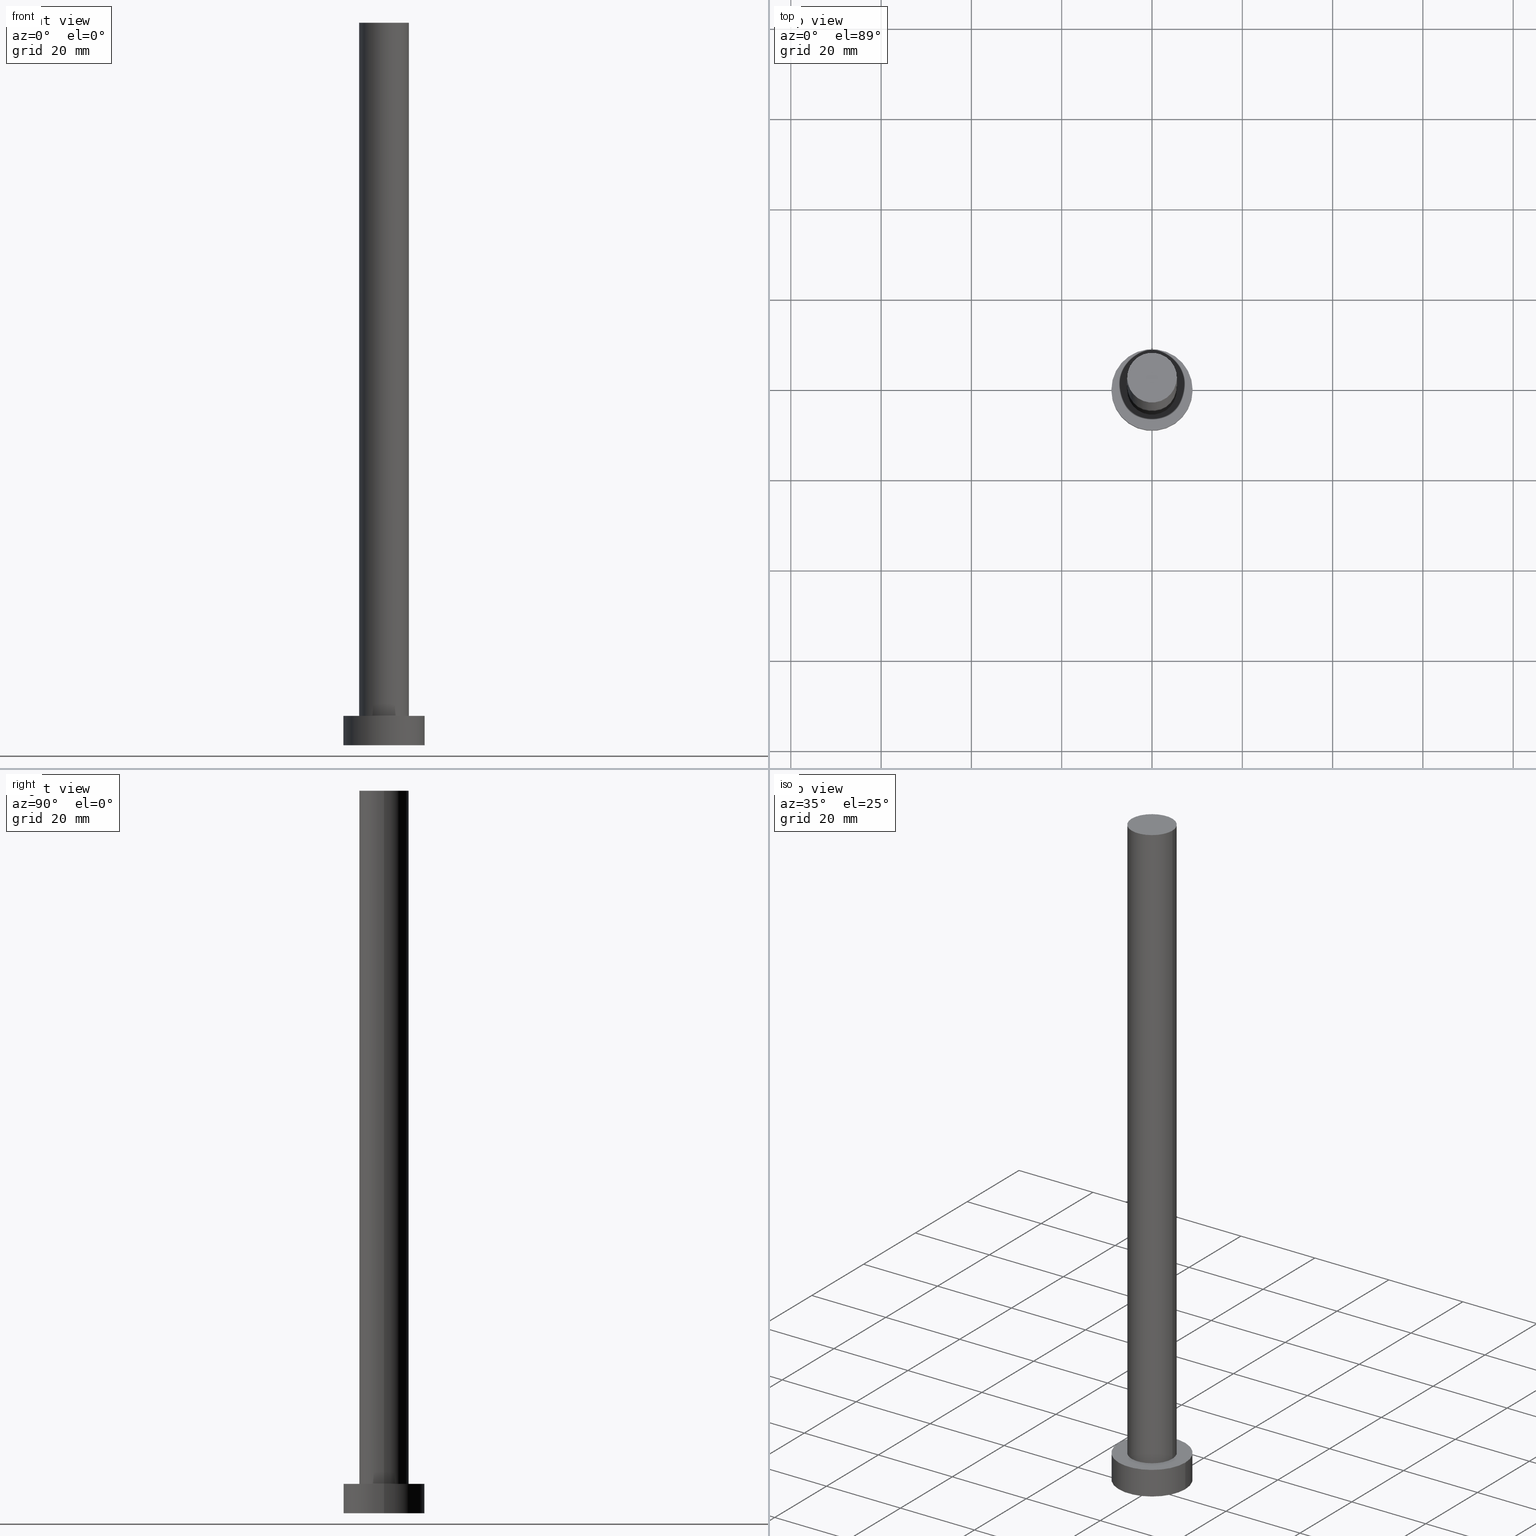
[diagram: canonical four-view strip — front | top / right | iso, engineering-drawing reading convention]
A machine part, canonical four-view strip (front | top / right | iso — engineering-drawing reading convention). The complete STEP part file that produces these views, byte-faithful:
ISO-10303-21;
HEADER;
FILE_DESCRIPTION (( 'STEP AP203' ),
    '1' );
FILE_NAME ('9eff.STEP',
    '2023-02-13T12:20:26',
    ( '' ),
    ( '' ),
    'SwSTEP 2.0',
    'SolidWorks 2019',
    '' );
FILE_SCHEMA (( 'CONFIG_CONTROL_DESIGN' ));
ENDSEC;

DATA;
#1 = COORDINATED_UNIVERSAL_TIME_OFFSET ( 1, 0, .AHEAD. ) ;
#2 = VERTEX_POINT ( 'NONE', #216 ) ;
#3 = DIRECTION ( 'NONE',  ( 0.000000000000000000, 0.000000000000000000, 1.000000000000000000 ) ) ;
#4 = ORIENTED_EDGE ( 'NONE', *, *, #190, .T. ) ;
#5 = AXIS2_PLACEMENT_3D ( 'NONE', #255, #65, #250 ) ;
#6 = AXIS2_PLACEMENT_3D ( 'NONE', #16, #3, #22 ) ;
#7 = VERTEX_POINT ( 'NONE', #47 ) ;
#8 = APPROVAL_ROLE ( '' ) ;
#9 = LINE ( 'NONE', #53, #57 ) ;
#10 = DIRECTION ( 'NONE',  ( -0.000000000000000000, -0.000000000000000000, -1.000000000000000000 ) ) ;
#11 = PRODUCT_DEFINITION ( 'NEZN�M�', '', #230, #174 ) ;
#12 = VERTEX_POINT ( 'NONE', #170 ) ;
#13 = AXIS2_PLACEMENT_3D ( 'NONE', #206, #228, #42 ) ;
#14 = EDGE_CURVE ( 'NONE', #2, #70, #133, .T. ) ;
#15 = DIRECTION ( 'NONE',  ( 0.000000000000000000, 0.000000000000000000, 1.000000000000000000 ) ) ;
#16 = CARTESIAN_POINT ( 'NONE',  ( 0.000000000000000000, 0.000000000000000000, 6.500000000000000000 ) ) ;
#17 = PRODUCT_DEFINITION_SHAPE ( 'NONE', 'NONE',  #11 ) ;
#18 = PLANE ( 'NONE',  #162 ) ;
#19 = FACE_OUTER_BOUND ( 'NONE', #235, .T. ) ;
#20 = CYLINDRICAL_SURFACE ( 'NONE', #157, 5.500000000000000000 ) ;
#21 = CC_DESIGN_SECURITY_CLASSIFICATION ( #177, ( #230 ) ) ;
#22 = DIRECTION ( 'NONE',  ( 1.000000000000000000, 0.000000000000000000, 0.000000000000000000 ) ) ;
#23 = FACE_OUTER_BOUND ( 'NONE', #147, .T. ) ;
#24 = EDGE_CURVE ( 'NONE', #7, #182, #132, .T. ) ;
#25 = UNCERTAINTY_MEASURE_WITH_UNIT (LENGTH_MEASURE( 1.000000000000000082E-05 ), #45, 'distance_accuracy_value', 'NONE');
#26 =( NAMED_UNIT ( * ) PLANE_ANGLE_UNIT ( ) SI_UNIT ( $, .RADIAN. ) );
#27 = ORIENTED_EDGE ( 'NONE', *, *, #24, .F. ) ;
#28 = PERSON_AND_ORGANIZATION_ROLE ( 'design_owner' ) ;
#29 = SHAPE_DEFINITION_REPRESENTATION ( #17, #130 ) ;
#30 = MECHANICAL_CONTEXT ( 'NONE', #211, 'mechanical' ) ;
#31 = LOCAL_TIME ( 13, 20, 26.00000000000000000, #218 ) ;
#32 = ORIENTED_EDGE ( 'NONE', *, *, #118, .T. ) ;
#33 = APPROVAL_DATE_TIME ( #201, #139 ) ;
#34 = AXIS2_PLACEMENT_3D ( 'NONE', #231, #238, #244 ) ;
#35 = FACE_BOUND ( 'NONE', #60, .T. ) ;
#36 = DIRECTION ( 'NONE',  ( 1.000000000000000000, 0.000000000000000000, -0.000000000000000000 ) ) ;
#37 = DIRECTION ( 'NONE',  ( 1.000000000000000000, 0.000000000000000000, 0.000000000000000000 ) ) ;
#38 = CIRCLE ( 'NONE', #117, 5.500000000000000000 ) ;
#39 = PERSON_AND_ORGANIZATION_ROLE ( 'design_supplier' ) ;
#40 = CYLINDRICAL_SURFACE ( 'NONE', #212, 9.000000000000000000 ) ;
#41 = DIRECTION ( 'NONE',  ( 1.000000000000000000, 0.000000000000000000, 0.000000000000000000 ) ) ;
#42 = DIRECTION ( 'NONE',  ( -1.000000000000000000, 0.000000000000000000, 0.000000000000000000 ) ) ;
#43 = AXIS2_PLACEMENT_3D ( 'NONE', #248, #79, #141 ) ;
#44 = DIRECTION ( 'NONE',  ( 1.000000000000000000, 0.000000000000000000, 0.000000000000000000 ) ) ;
#45 =( LENGTH_UNIT ( ) NAMED_UNIT ( * ) SI_UNIT ( .MILLI., .METRE. ) );
#46 = ORIENTED_EDGE ( 'NONE', *, *, #116, .T. ) ;
#47 = CARTESIAN_POINT ( 'NONE',  ( 5.500000000000000000, 6.735557395310442023E-16, 160.0000000000000000 ) ) ;
#48 = COORDINATED_UNIVERSAL_TIME_OFFSET ( 1, 0, .AHEAD. ) ;
#49 = AXIS2_PLACEMENT_3D ( 'NONE', #142, #205, #37 ) ;
#50 = MANIFOLD_SOLID_BREP ( 'P�idat vysunut�m3', #199 ) ;
#51 = LOCAL_TIME ( 13, 20, 26.00000000000000000, #1 ) ;
#52 = CALENDAR_DATE ( 2023, 13, 2 ) ;
#53 = CARTESIAN_POINT ( 'NONE',  ( 9.000000000000000000, 1.102182119232617517E-15, 6.500000000000000000 ) ) ;
#54 = EDGE_CURVE ( 'NONE', #167, #12, #9, .T. ) ;
#55 = DATE_AND_TIME ( #153, #120 ) ;
#56 = FACE_OUTER_BOUND ( 'NONE', #90, .T. ) ;
#57 = VECTOR ( 'NONE', #10, 1000.000000000000000 ) ;
#58 = CARTESIAN_POINT ( 'NONE',  ( 0.000000000000000000, 0.000000000000000000, 6.500000000000000000 ) ) ;
#59 = CARTESIAN_POINT ( 'NONE',  ( 0.000000000000000000, 0.000000000000000000, 6.500000000000000000 ) ) ;
#60 = EDGE_LOOP ( 'NONE', ( #163, #68 ) ) ;
#61 = FACE_OUTER_BOUND ( 'NONE', #102, .T. ) ;
#62 = CARTESIAN_POINT ( 'NONE',  ( 0.000000000000000000, 0.000000000000000000, 6.500000000000000000 ) ) ;
#63 = DIRECTION ( 'NONE',  ( -0.000000000000000000, -0.000000000000000000, -1.000000000000000000 ) ) ;
#64 = APPROVAL_PERSON_ORGANIZATION ( #91, #247, #8 ) ;
#65 = DIRECTION ( 'NONE',  ( 0.000000000000000000, 0.000000000000000000, 1.000000000000000000 ) ) ;
#66 = ORIENTED_EDGE ( 'NONE', *, *, #118, .F. ) ;
#67 = CIRCLE ( 'NONE', #219, 9.000000000000000000 ) ;
#68 = ORIENTED_EDGE ( 'NONE', *, *, #165, .F. ) ;
#69 = DATE_AND_TIME ( #217, #31 ) ;
#70 = VERTEX_POINT ( 'NONE', #124 ) ;
#71 = APPROVAL_ROLE ( '' ) ;
#72 = ADVANCED_FACE ( 'NONE', ( #61 ), #160, .T. ) ;
#73 = DIRECTION ( 'NONE',  ( 0.000000000000000000, 0.000000000000000000, 1.000000000000000000 ) ) ;
#74 = CC_DESIGN_APPROVAL ( #139, ( #230 ) ) ;
#75 = COORDINATED_UNIVERSAL_TIME_OFFSET ( 1, 0, .AHEAD. ) ;
#76 = EDGE_CURVE ( 'NONE', #7, #197, #178, .T. ) ;
#77 = CIRCLE ( 'NONE', #49, 5.500000000000000000 ) ;
#78 = CARTESIAN_POINT ( 'NONE',  ( -5.500000000000000000, 0.000000000000000000, 160.0000000000000000 ) ) ;
#79 = DIRECTION ( 'NONE',  ( 0.000000000000000000, 0.000000000000000000, 1.000000000000000000 ) ) ;
#80 = ORIENTED_EDGE ( 'NONE', *, *, #54, .T. ) ;
#81 = EDGE_CURVE ( 'NONE', #122, #197, #99, .T. ) ;
#82 = DIRECTION ( 'NONE',  ( 0.000000000000000000, 0.000000000000000000, 1.000000000000000000 ) ) ;
#83 = DIRECTION ( 'NONE',  ( -1.000000000000000000, 0.000000000000000000, 0.000000000000000000 ) ) ;
#84 = CIRCLE ( 'NONE', #6, 9.000000000000000000 ) ;
#85 = CARTESIAN_POINT ( 'NONE',  ( 0.000000000000000000, 0.000000000000000000, 6.500000000000000000 ) ) ;
#86 = DIRECTION ( 'NONE',  ( 1.000000000000000000, 0.000000000000000000, 0.000000000000000000 ) ) ;
#87 = DIRECTION ( 'NONE',  ( 1.000000000000000000, 0.000000000000000000, -0.000000000000000000 ) ) ;
#88 = CARTESIAN_POINT ( 'NONE',  ( 0.000000000000000000, 0.000000000000000000, 160.0000000000000000 ) ) ;
#89 = LINE ( 'NONE', #159, #251 ) ;
#90 = EDGE_LOOP ( 'NONE', ( #4, #225 ) ) ;
#91 = PERSON_AND_ORGANIZATION ( #245, #222 ) ;
#92 = CC_DESIGN_DATE_AND_TIME_ASSIGNMENT ( #220, #109, ( #177 ) ) ;
#93 = DATE_TIME_ROLE ( 'creation_date' ) ;
#94 = VECTOR ( 'NONE', #229, 1000.000000000000000 ) ;
#95 = ORIENTED_EDGE ( 'NONE', *, *, #76, .T. ) ;
#96 = ADVANCED_FACE ( 'NONE', ( #19 ), #103, .T. ) ;
#97 = APPROVAL_DATE_TIME ( #152, #247 ) ;
#98 = ORIENTED_EDGE ( 'NONE', *, *, #24, .T. ) ;
#99 = CIRCLE ( 'NONE', #183, 5.500000000000000000 ) ;
#100 = PRODUCT ( '9eff', '9eff', '', ( #30 ) ) ;
#101 = ADVANCED_FACE ( 'NONE', ( #195 ), #180, .F. ) ;
#102 = EDGE_LOOP ( 'NONE', ( #32, #98 ) ) ;
#103 = CYLINDRICAL_SURFACE ( 'NONE', #181, 9.000000000000000000 ) ;
#104 = CC_DESIGN_PERSON_AND_ORGANIZATION_ASSIGNMENT ( #188, #223, ( #230 ) ) ;
#105 = CC_DESIGN_APPROVAL ( #247, ( #177 ) ) ;
#106 = DIRECTION ( 'NONE',  ( 0.000000000000000000, 0.000000000000000000, 1.000000000000000000 ) ) ;
#107 = ORIENTED_EDGE ( 'NONE', *, *, #54, .F. ) ;
#108 = ADVANCED_FACE ( 'NONE', ( #35, #56 ), #18, .T. ) ;
#109 = DATE_TIME_ROLE ( 'classification_date' ) ;
#110 = APPROVAL_STATUS ( 'not_yet_approved' ) ;
#111 = APPROVAL_STATUS ( 'not_yet_approved' ) ;
#112 = CARTESIAN_POINT ( 'NONE',  ( 0.000000000000000000, 0.000000000000000000, 160.0000000000000000 ) ) ;
#113 = APPROVAL_DATE_TIME ( #69, #210 ) ;
#114 = PERSON_AND_ORGANIZATION ( #245, #222 ) ;
#115 = ORIENTED_EDGE ( 'NONE', *, *, #81, .T. ) ;
#116 = EDGE_CURVE ( 'NONE', #70, #12, #155, .T. ) ;
#117 = AXIS2_PLACEMENT_3D ( 'NONE', #121, #82, #41 ) ;
#118 = EDGE_CURVE ( 'NONE', #182, #7, #77, .T. ) ;
#119 = DIRECTION ( 'NONE',  ( -0.000000000000000000, -0.000000000000000000, -1.000000000000000000 ) ) ;
#120 = LOCAL_TIME ( 13, 20, 26.00000000000000000, #75 ) ;
#121 = CARTESIAN_POINT ( 'NONE',  ( 0.000000000000000000, 0.000000000000000000, 6.500000000000000000 ) ) ;
#122 = VERTEX_POINT ( 'NONE', #249 ) ;
#123 = ADVANCED_FACE ( 'NONE', ( #203 ), #40, .T. ) ;
#124 = CARTESIAN_POINT ( 'NONE',  ( -9.000000000000000000, 0.000000000000000000, 0.000000000000000000 ) ) ;
#125 = LOCAL_TIME ( 13, 20, 26.00000000000000000, #150 ) ;
#126 = DIRECTION ( 'NONE',  ( -0.000000000000000000, -0.000000000000000000, -1.000000000000000000 ) ) ;
#127 = ORIENTED_EDGE ( 'NONE', *, *, #233, .F. ) ;
#128 = CARTESIAN_POINT ( 'NONE',  ( 0.000000000000000000, 0.000000000000000000, 160.0000000000000000 ) ) ;
#129 = ORIENTED_EDGE ( 'NONE', *, *, #239, .F. ) ;
#130 = ADVANCED_BREP_SHAPE_REPRESENTATION ( '9eff', ( #50, #34 ), #140 ) ;
#131 = ORIENTED_EDGE ( 'NONE', *, *, #190, .F. ) ;
#132 = CIRCLE ( 'NONE', #166, 5.500000000000000000 ) ;
#133 = LINE ( 'NONE', #200, #176 ) ;
#134 = CALENDAR_DATE ( 2023, 13, 2 ) ;
#135 = APPROVAL_PERSON_ORGANIZATION ( #114, #210, #241 ) ;
#136 = CALENDAR_DATE ( 2023, 13, 2 ) ;
#137 = ORIENTED_EDGE ( 'NONE', *, *, #14, .T. ) ;
#138 = PERSON_AND_ORGANIZATION_ROLE ( 'creator' ) ;
#139 = APPROVAL ( #110, 'NEUR�EN�' ) ;
#140 =( GEOMETRIC_REPRESENTATION_CONTEXT ( 3 ) GLOBAL_UNCERTAINTY_ASSIGNED_CONTEXT ( ( #25 ) ) GLOBAL_UNIT_ASSIGNED_CONTEXT ( ( #45, #26, #158 ) ) REPRESENTATION_CONTEXT ( 'NONE', 'WORKASPACE' ) );
#141 = DIRECTION ( 'NONE',  ( 1.000000000000000000, 0.000000000000000000, 0.000000000000000000 ) ) ;
#142 = CARTESIAN_POINT ( 'NONE',  ( 0.000000000000000000, 0.000000000000000000, 160.0000000000000000 ) ) ;
#143 = FACE_OUTER_BOUND ( 'NONE', #156, .T. ) ;
#144 = ORIENTED_EDGE ( 'NONE', *, *, #239, .T. ) ;
#145 = DIRECTION ( 'NONE',  ( -0.000000000000000000, -0.000000000000000000, -1.000000000000000000 ) ) ;
#146 = CARTESIAN_POINT ( 'NONE',  ( 0.000000000000000000, 0.000000000000000000, 0.000000000000000000 ) ) ;
#147 = EDGE_LOOP ( 'NONE', ( #27, #95, #185, #129 ) ) ;
#148 = APPROVAL_PERSON_ORGANIZATION ( #213, #139, #71 ) ;
#149 = CC_DESIGN_PERSON_AND_ORGANIZATION_ASSIGNMENT ( #184, #186, ( #177 ) ) ;
#150 = COORDINATED_UNIVERSAL_TIME_OFFSET ( 1, 0, .AHEAD. ) ;
#151 = ORIENTED_EDGE ( 'NONE', *, *, #14, .F. ) ;
#152 = DATE_AND_TIME ( #136, #125 ) ;
#153 = CALENDAR_DATE ( 2023, 13, 2 ) ;
#154 = CC_DESIGN_PERSON_AND_ORGANIZATION_ASSIGNMENT ( #243, #28, ( #100 ) ) ;
#155 = CIRCLE ( 'NONE', #43, 9.000000000000000000 ) ;
#156 = EDGE_LOOP ( 'NONE', ( #214, #66, #144, #115 ) ) ;
#157 = AXIS2_PLACEMENT_3D ( 'NONE', #128, #63, #161 ) ;
#158 =( NAMED_UNIT ( * ) SI_UNIT ( $, .STERADIAN. ) SOLID_ANGLE_UNIT ( ) );
#159 = CARTESIAN_POINT ( 'NONE',  ( -5.500000000000000000, 0.000000000000000000, 160.0000000000000000 ) ) ;
#160 = PLANE ( 'NONE',  #194 ) ;
#161 = DIRECTION ( 'NONE',  ( -1.000000000000000000, 0.000000000000000000, 0.000000000000000000 ) ) ;
#162 = AXIS2_PLACEMENT_3D ( 'NONE', #58, #15, #36 ) ;
#163 = ORIENTED_EDGE ( 'NONE', *, *, #81, .F. ) ;
#164 = EDGE_LOOP ( 'NONE', ( #242, #127 ) ) ;
#165 = EDGE_CURVE ( 'NONE', #197, #122, #38, .T. ) ;
#166 = AXIS2_PLACEMENT_3D ( 'NONE', #112, #73, #187 ) ;
#167 = VERTEX_POINT ( 'NONE', #191 ) ;
#168 = APPLICATION_PROTOCOL_DEFINITION ( 'international standard', 'config_control_design', 1994, #226 ) ;
#169 = LOCAL_TIME ( 13, 20, 26.00000000000000000, #48 ) ;
#170 = CARTESIAN_POINT ( 'NONE',  ( 9.000000000000000000, 1.102182119232617517E-15, 0.000000000000000000 ) ) ;
#171 = CC_DESIGN_PERSON_AND_ORGANIZATION_ASSIGNMENT ( #224, #39, ( #230 ) ) ;
#172 = DIRECTION ( 'NONE',  ( -1.000000000000000000, 0.000000000000000000, 0.000000000000000000 ) ) ;
#173 = CC_DESIGN_APPROVAL ( #210, ( #11 ) ) ;
#174 = DESIGN_CONTEXT ( 'detailed design', #226, 'design' ) ;
#175 = CC_DESIGN_PERSON_AND_ORGANIZATION_ASSIGNMENT ( #202, #138, ( #11 ) ) ;
#176 = VECTOR ( 'NONE', #189, 1000.000000000000000 ) ;
#177 = SECURITY_CLASSIFICATION ( '', '', #246 ) ;
#178 = LINE ( 'NONE', #253, #94 ) ;
#179 = CARTESIAN_POINT ( 'NONE',  ( 0.000000000000000000, 0.000000000000000000, 6.500000000000000000 ) ) ;
#180 = PLANE ( 'NONE',  #5 ) ;
#181 = AXIS2_PLACEMENT_3D ( 'NONE', #85, #126, #83 ) ;
#182 = VERTEX_POINT ( 'NONE', #78 ) ;
#183 = AXIS2_PLACEMENT_3D ( 'NONE', #62, #193, #207 ) ;
#184 = PERSON_AND_ORGANIZATION ( #245, #222 ) ;
#185 = ORIENTED_EDGE ( 'NONE', *, *, #165, .T. ) ;
#186 = PERSON_AND_ORGANIZATION_ROLE ( 'classification_officer' ) ;
#187 = DIRECTION ( 'NONE',  ( 1.000000000000000000, 0.000000000000000000, 0.000000000000000000 ) ) ;
#188 = PERSON_AND_ORGANIZATION ( #245, #222 ) ;
#189 = DIRECTION ( 'NONE',  ( -0.000000000000000000, -0.000000000000000000, -1.000000000000000000 ) ) ;
#190 = EDGE_CURVE ( 'NONE', #2, #167, #84, .T. ) ;
#191 = CARTESIAN_POINT ( 'NONE',  ( 9.000000000000000000, 1.102182119232617517E-15, 6.500000000000000000 ) ) ;
#192 = ADVANCED_FACE ( 'NONE', ( #23 ), #252, .T. ) ;
#193 = DIRECTION ( 'NONE',  ( 0.000000000000000000, 0.000000000000000000, 1.000000000000000000 ) ) ;
#194 = AXIS2_PLACEMENT_3D ( 'NONE', #88, #106, #87 ) ;
#195 = FACE_OUTER_BOUND ( 'NONE', #164, .T. ) ;
#196 = APPLICATION_PROTOCOL_DEFINITION ( 'international standard', 'config_control_design', 1994, #211 ) ;
#197 = VERTEX_POINT ( 'NONE', #208 ) ;
#198 = PRODUCT_RELATED_PRODUCT_CATEGORY ( 'detail', '', ( #100 ) ) ;
#199 = CLOSED_SHELL ( 'NONE', ( #192, #123, #96, #108, #101, #221, #72 ) ) ;
#200 = CARTESIAN_POINT ( 'NONE',  ( -9.000000000000000000, 0.000000000000000000, 6.500000000000000000 ) ) ;
#201 = DATE_AND_TIME ( #134, #169 ) ;
#202 = PERSON_AND_ORGANIZATION ( #245, #222 ) ;
#203 = FACE_OUTER_BOUND ( 'NONE', #232, .T. ) ;
#204 = CIRCLE ( 'NONE', #236, 9.000000000000000000 ) ;
#205 = DIRECTION ( 'NONE',  ( 0.000000000000000000, 0.000000000000000000, 1.000000000000000000 ) ) ;
#206 = CARTESIAN_POINT ( 'NONE',  ( 0.000000000000000000, 0.000000000000000000, 160.0000000000000000 ) ) ;
#207 = DIRECTION ( 'NONE',  ( 1.000000000000000000, 0.000000000000000000, 0.000000000000000000 ) ) ;
#208 = CARTESIAN_POINT ( 'NONE',  ( 5.500000000000000000, 6.735557395310442023E-16, 6.500000000000000000 ) ) ;
#209 = ORIENTED_EDGE ( 'NONE', *, *, #215, .F. ) ;
#210 = APPROVAL ( #111, 'NEUR�EN�' ) ;
#211 = APPLICATION_CONTEXT ( 'configuration controlled 3d designs of mechanical parts and assemblies' ) ;
#212 = AXIS2_PLACEMENT_3D ( 'NONE', #59, #119, #172 ) ;
#213 = PERSON_AND_ORGANIZATION ( #245, #222 ) ;
#214 = ORIENTED_EDGE ( 'NONE', *, *, #76, .F. ) ;
#215 = EDGE_CURVE ( 'NONE', #167, #2, #67, .T. ) ;
#216 = CARTESIAN_POINT ( 'NONE',  ( -9.000000000000000000, 0.000000000000000000, 6.500000000000000000 ) ) ;
#217 = CALENDAR_DATE ( 2023, 13, 2 ) ;
#218 = COORDINATED_UNIVERSAL_TIME_OFFSET ( 1, 0, .AHEAD. ) ;
#219 = AXIS2_PLACEMENT_3D ( 'NONE', #179, #234, #44 ) ;
#220 = DATE_AND_TIME ( #52, #51 ) ;
#221 = ADVANCED_FACE ( 'NONE', ( #143 ), #20, .T. ) ;
#222 = ORGANIZATION ( 'NEUR�EN�', 'NEUR�EN�', '' ) ;
#223 = PERSON_AND_ORGANIZATION_ROLE ( 'creator' ) ;
#224 = PERSON_AND_ORGANIZATION ( #245, #222 ) ;
#225 = ORIENTED_EDGE ( 'NONE', *, *, #215, .T. ) ;
#226 = APPLICATION_CONTEXT ( 'configuration controlled 3d designs of mechanical parts and assemblies' ) ;
#227 = CC_DESIGN_DATE_AND_TIME_ASSIGNMENT ( #55, #93, ( #11 ) ) ;
#228 = DIRECTION ( 'NONE',  ( -0.000000000000000000, -0.000000000000000000, -1.000000000000000000 ) ) ;
#229 = DIRECTION ( 'NONE',  ( -0.000000000000000000, -0.000000000000000000, -1.000000000000000000 ) ) ;
#230 = PRODUCT_DEFINITION_FORMATION_WITH_SPECIFIED_SOURCE ( 'LIBOVOLN�', '', #100, .NOT_KNOWN. ) ;
#231 = CARTESIAN_POINT ( 'NONE',  ( 0.000000000000000000, 0.000000000000000000, 0.000000000000000000 ) ) ;
#232 = EDGE_LOOP ( 'NONE', ( #209, #80, #240, #151 ) ) ;
#233 = EDGE_CURVE ( 'NONE', #12, #70, #204, .T. ) ;
#234 = DIRECTION ( 'NONE',  ( 0.000000000000000000, 0.000000000000000000, 1.000000000000000000 ) ) ;
#235 = EDGE_LOOP ( 'NONE', ( #107, #131, #137, #46 ) ) ;
#236 = AXIS2_PLACEMENT_3D ( 'NONE', #146, #254, #86 ) ;
#237 = APPROVAL_STATUS ( 'not_yet_approved' ) ;
#238 = DIRECTION ( 'NONE',  ( 0.000000000000000000, 0.000000000000000000, 1.000000000000000000 ) ) ;
#239 = EDGE_CURVE ( 'NONE', #182, #122, #89, .T. ) ;
#240 = ORIENTED_EDGE ( 'NONE', *, *, #233, .T. ) ;
#241 = APPROVAL_ROLE ( '' ) ;
#242 = ORIENTED_EDGE ( 'NONE', *, *, #116, .F. ) ;
#243 = PERSON_AND_ORGANIZATION ( #245, #222 ) ;
#244 = DIRECTION ( 'NONE',  ( 1.000000000000000000, 0.000000000000000000, 0.000000000000000000 ) ) ;
#245 = PERSON ( 'NEUR�EN�', 'NEUR�EN�', 'NEUR�EN�', ('NEUR�EN�'), ('NEUR�EN�'), ('NEUR�EN�') ) ;
#246 = SECURITY_CLASSIFICATION_LEVEL ( 'unclassified' ) ;
#247 = APPROVAL ( #237, 'NEUR�EN�' ) ;
#248 = CARTESIAN_POINT ( 'NONE',  ( 0.000000000000000000, 0.000000000000000000, 0.000000000000000000 ) ) ;
#249 = CARTESIAN_POINT ( 'NONE',  ( -5.500000000000000000, 0.000000000000000000, 6.500000000000000000 ) ) ;
#250 = DIRECTION ( 'NONE',  ( 1.000000000000000000, 0.000000000000000000, -0.000000000000000000 ) ) ;
#251 = VECTOR ( 'NONE', #145, 1000.000000000000000 ) ;
#252 = CYLINDRICAL_SURFACE ( 'NONE', #13, 5.500000000000000000 ) ;
#253 = CARTESIAN_POINT ( 'NONE',  ( 5.500000000000000000, 6.735557395310442023E-16, 160.0000000000000000 ) ) ;
#254 = DIRECTION ( 'NONE',  ( 0.000000000000000000, 0.000000000000000000, 1.000000000000000000 ) ) ;
#255 = CARTESIAN_POINT ( 'NONE',  ( 0.000000000000000000, 0.000000000000000000, 0.000000000000000000 ) ) ;
ENDSEC;
END-ISO-10303-21;
